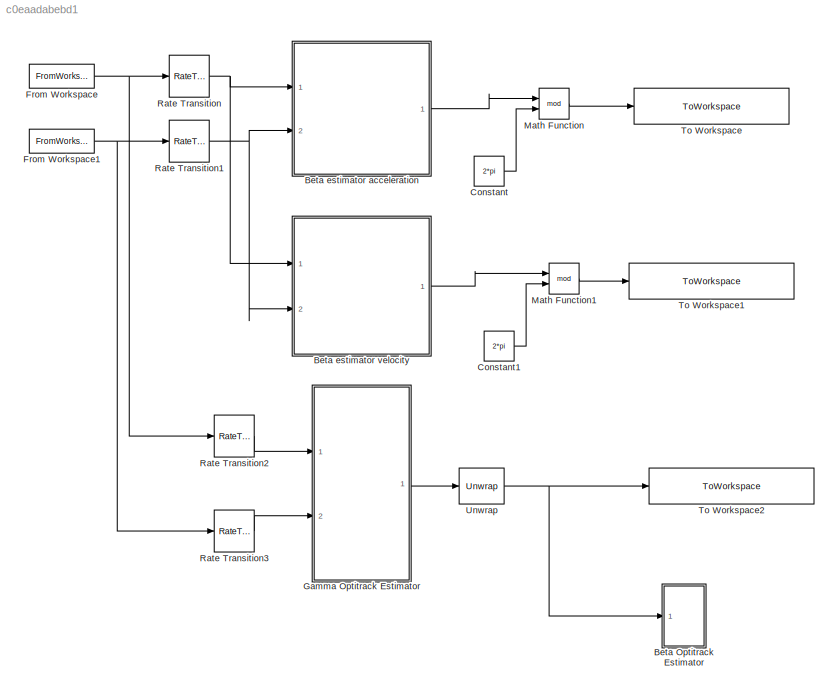
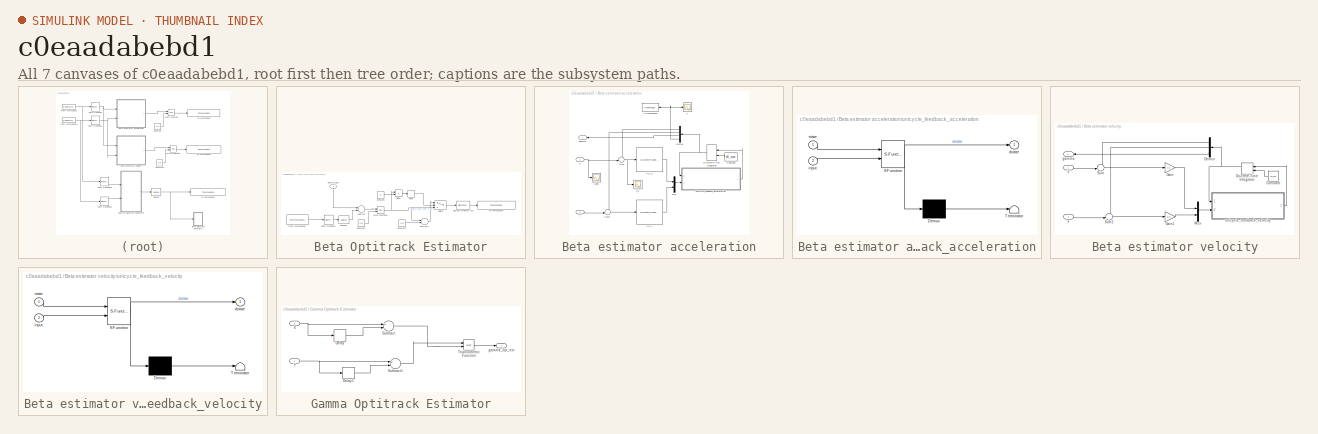
[diagram: thumbnail index - all 7 canvases of the model, root first then tree order]
MODEL slx_c0eaadabebd1
KIND model
CONFIG AbsTol = auto
CONFIG EnableMultiTasking = off
CONFIG FixedStep = 1e-3
CONFIG MaxStep = auto
CONFIG MinStep = auto
CONFIG RelTol = 1e-3
CONFIG SampleTimeConstraint = Unconstrained
CONFIG Solver = VariableStepAuto
CONFIG SolverName = VariableStepAuto
CONFIG StartTime = 0.0
CONFIG StopTime = 10.0
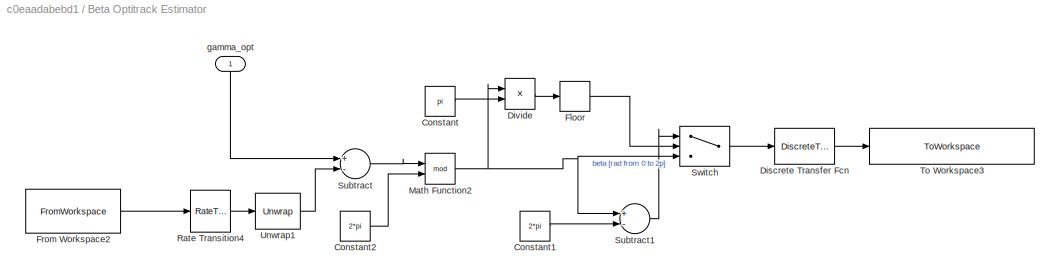
BLOCK [SubSystem] Beta Optitrack Estimator
  Ports = [1]
  RequestExecContextInheritance = off
  Variant = off
BLOCK [Constant] Beta Optitrack Estimator/Constant
  Value = pi
BLOCK [Constant] Beta Optitrack Estimator/Constant1
  Value = 2*pi
BLOCK [Constant] Beta Optitrack Estimator/Constant2
  Value = 2*pi
BLOCK [DiscreteTransferFcn] Beta Optitrack Estimator/Discrete Transfer Fcn
  Denominator = FilterDTF.Den{1}
  InputPortMap = u0
  Numerator = FilterDTF.Num{1}
  Ports = [1, 1]
BLOCK [Product] Beta Optitrack Estimator/Divide
  InputSameDT = off
  Inputs = */
  OutDataTypeStr = Inherit: Inherit via internal rule
  Ports = [2, 1]
  RndMeth = Floor
  SaturateOnIntegerOverflow = off
BLOCK [Rounding] Beta Optitrack Estimator/Floor
BLOCK [FromWorkspace] Beta Optitrack Estimator/From Workspace2
  Interpolate = off
  OutputAfterFinalValue = Holding final value
  SampleTime = 0
  VariableName = theta_opt_buchi
  ZeroCross = on
BLOCK [Math] Beta Optitrack Estimator/Math Function2
  Operator = mod
  Ports = [2, 1]
BLOCK [RateTransition] Beta Optitrack Estimator/Rate Transition4
  OutPortSampleTime = 0.01
BLOCK [Sum] Beta Optitrack Estimator/Subtract
  InputSameDT = off
  Inputs = +-
  OutDataTypeStr = Inherit: Inherit via internal rule
  Ports = [2, 1]
  SaturateOnIntegerOverflow = off
BLOCK [Sum] Beta Optitrack Estimator/Subtract1
  InputSameDT = off
  Inputs = +-
  OutDataTypeStr = Inherit: Inherit via internal rule
  Ports = [2, 1]
  SaturateOnIntegerOverflow = off
BLOCK [Switch] Beta Optitrack Estimator/Switch
  InputSameDT = off
  SaturateOnIntegerOverflow = off
  Threshold = 1
BLOCK [ToWorkspace] Beta Optitrack Estimator/To Workspace3
  FixptAsFi = on
  MaxDataPoints = inf
  Ports = [1]
  SampleTime = -1
  Save2DSignal = 3-D array (concatenate along third dimension)
  SaveFormat = Timeseries
  VariableName = beta_estimator_opt
BLOCK [Reference] Beta Optitrack Estimator/Unwrap1  REF=dspsigops/Unwrap
  Ports = [1, 1]
  SourceBlock = dspsigops/Unwrap
  SourceProductBaseCode = DS
  SourceProductName = DSP System Toolbox
  SourceType = Unwrap
  UserDataPersistent = on
BLOCK [Inport] Beta Optitrack Estimator/gamma_opt
  IconDisplay = Port number
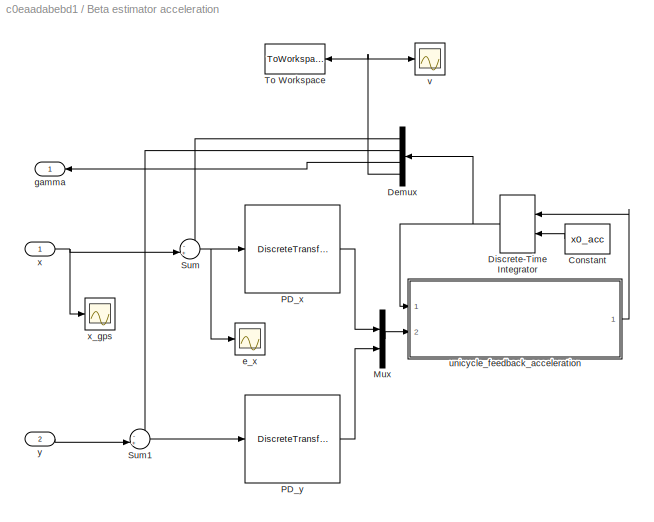
BLOCK [SubSystem] Beta estimator acceleration
  Ports = [2, 1]
  RequestExecContextInheritance = off
  SystemSampleTime = 1e-3
  TreatAsAtomicUnit = on
  Variant = off
BLOCK [Constant] Beta estimator acceleration/Constant
  Value = x0_acc
BLOCK [Demux] Beta estimator acceleration/Demux
  DisplayOption = bar
  Ports = [1, 4]
BLOCK [DiscreteIntegrator] Beta estimator acceleration/Discrete-Time Integrator
  ICPrevOutput = DiscIntNeverNeededParam
  ICPrevScaledInput = DiscIntNeverNeededParam
  InitialCondition = [0 0 0 0.1]
  InitialConditionSetting = State (most efficient)
  InitialConditionSource = external
  Ports = [2, 1]
  SampleTime = 1e-3
BLOCK [Mux] Beta estimator acceleration/Mux
  DisplayOption = bar
  Inputs = 2
  Ports = [2, 1]
BLOCK [DiscreteTransferFcn] Beta estimator acceleration/PD_x
  Denominator = Den_PDa
  InputPortMap = u0
  Numerator = Num_PDa
  Ports = [1, 1]
  SampleTime = 0.001
  a0EqualsOne = on
BLOCK [DiscreteTransferFcn] Beta estimator acceleration/PD_y
  Denominator = Den_PDa
  InputPortMap = u0
  Numerator = Num_PDa
  Ports = [1, 1]
  SampleTime = 0.001
  a0EqualsOne = on
BLOCK [Sum] Beta estimator acceleration/Sum
  IconShape = round
  InputSameDT = off
  Inputs = -+|
  OutDataTypeStr = Inherit: Inherit via internal rule
  Ports = [2, 1]
  SaturateOnIntegerOverflow = off
BLOCK [Sum] Beta estimator acceleration/Sum1
  IconShape = round
  InputSameDT = off
  Inputs = -+|
  OutDataTypeStr = Inherit: Inherit via internal rule
  Ports = [2, 1]
  SaturateOnIntegerOverflow = off
BLOCK [ToWorkspace] Beta estimator acceleration/To Workspace
  FixptAsFi = on
  MaxDataPoints = inf
  Ports = [1]
  SampleTime = -1
  Save2DSignal = 3-D array (concatenate along third dimension)
  SaveFormat = Timeseries
  VariableName = v
BLOCK [Scope] Beta estimator acceleration/e_x
  NumInputPorts = 1
  Ports = [1]
  ScopeSpecificationString = Simulink.scopes.TimeScopeBlockCfg('CurrentConfiguration', extmgr.ConfigurationSet(extmgr.Configuration('Core','General UI',true),extmgr.Configuration('Core','Source UI',true),extmgr.Configuration('Sources','WiredSimulink',true,'DataLoggingVariableName','ScopeData1'),extmgr.Configuration('Visuals','Time Domain',true,'SerializedDisplays',{struct('MinYLimReal','-0.03129','MaxYLimReal','0.10111','YLab...<+1434ch>
BLOCK [Outport] Beta estimator acceleration/gamma
  IconDisplay = Port number
BLOCK [SubSystem] Beta estimator acceleration/unicycle_feedback_acceleration
  ErrorFcn = Stateflow.Translate.translate
  PermitHierarchicalResolution = ExplicitOnly
  Ports = [2, 1]
  RequestExecContextInheritance = off
  SFBlockType = MATLAB Function
  TreatAsAtomicUnit = on
  Variant = off
BLOCK [Demux] Beta estimator acceleration/unicycle_feedback_acceleration/ Demux 
  Outputs = 1
  Ports = [1, 1]
BLOCK [S-Function] Beta estimator acceleration/unicycle_feedback_acceleration/ SFunction 
  EnableBusSupport = on
  FunctionName = sf_sfun
  PortCounts = [2 2]
  Ports = [2, 2]
  SFcnIsStateOwnerBlock = off
  SFunctionDeploymentMode = off
  Tag = Stateflow S-Function beta_estimators_simulink 2
BLOCK [Terminator] Beta estimator acceleration/unicycle_feedback_acceleration/ Terminator 
BLOCK [Outport] Beta estimator acceleration/unicycle_feedback_acceleration/dstate
  IconDisplay = Port number
BLOCK [Inport] Beta estimator acceleration/unicycle_feedback_acceleration/input
  IconDisplay = Port number
  Port = 2
BLOCK [Inport] Beta estimator acceleration/unicycle_feedback_acceleration/state
  IconDisplay = Port number
BLOCK [Scope] Beta estimator acceleration/v
  NumInputPorts = 1
  Ports = [1]
  ScopeSpecificationString = Simulink.scopes.TimeScopeBlockCfg('CurrentConfiguration', extmgr.ConfigurationSet(extmgr.Configuration('Core','General UI',true),extmgr.Configuration('Core','Source UI',true),extmgr.Configuration('Sources','WiredSimulink',true,'DataLoggingVariableName','ScopeData3'),extmgr.Configuration('Visuals','Time Domain',true,'SerializedDisplays',{struct('MinYLimReal','-4.68424','MaxYLimReal','4.48732','YLab...<+1438ch>
BLOCK [Inport] Beta estimator acceleration/x
  IconDisplay = Port number
BLOCK [Scope] Beta estimator acceleration/x_gps
  NumInputPorts = 1
  Ports = [1]
  ScopeSpecificationString = Simulink.scopes.TimeScopeBlockCfg('CurrentConfiguration', extmgr.ConfigurationSet(extmgr.Configuration('Core','General UI',true),extmgr.Configuration('Core','Source UI',true),extmgr.Configuration('Sources','WiredSimulink',true,'DataLoggingVariableName','ScopeData2'),extmgr.Configuration('Visuals','Time Domain',true,'SerializedDisplays',{struct('MinYLimReal','-0.98723','MaxYLimReal','2.02997','YLab...<+1432ch>
BLOCK [Inport] Beta estimator acceleration/y
  IconDisplay = Port number
  Port = 2
BLOCK [SubSystem] Beta estimator velocity
  Ports = [2, 1]
  RequestExecContextInheritance = off
  Variant = off
BLOCK [Constant] Beta estimator velocity/Constant
  Value = x0_vel
BLOCK [Demux] Beta estimator velocity/Demux
  DisplayOption = bar
  Outputs = 3
  Ports = [1, 3]
BLOCK [DiscreteIntegrator] Beta estimator velocity/Discrete-Time Integrator
  ICPrevOutput = DiscIntNeverNeededParam
  ICPrevScaledInput = DiscIntNeverNeededParam
  InitialConditionSetting = State (most efficient)
  InitialConditionSource = external
  Ports = [2, 1]
  SampleTime = 0.001
BLOCK [Gain] Beta estimator velocity/Gain
  Gain = Kp
  OutDataTypeStr = Inherit: Inherit via internal rule
  ParamDataTypeStr = Inherit: Inherit via internal rule
  SaturateOnIntegerOverflow = off
BLOCK [Gain] Beta estimator velocity/Gain1
  Gain = Kp
  OutDataTypeStr = Inherit: Inherit via internal rule
  ParamDataTypeStr = Inherit: Inherit via internal rule
  SaturateOnIntegerOverflow = off
BLOCK [Mux] Beta estimator velocity/Mux
  DisplayOption = bar
  Inputs = 2
  Ports = [2, 1]
BLOCK [Sum] Beta estimator velocity/Sum
  IconShape = round
  InputSameDT = off
  Inputs = -+|
  OutDataTypeStr = Inherit: Inherit via internal rule
  Ports = [2, 1]
  SaturateOnIntegerOverflow = off
BLOCK [Sum] Beta estimator velocity/Sum1
  IconShape = round
  InputSameDT = off
  Inputs = -+|
  OutDataTypeStr = Inherit: Inherit via internal rule
  Ports = [2, 1]
  SaturateOnIntegerOverflow = off
BLOCK [Outport] Beta estimator velocity/gamma
  IconDisplay = Port number
BLOCK [SubSystem] Beta estimator velocity/unicycle_feedback_velocity
  ErrorFcn = Stateflow.Translate.translate
  PermitHierarchicalResolution = ExplicitOnly
  Ports = [2, 1]
  RequestExecContextInheritance = off
  SFBlockType = MATLAB Function
  TreatAsAtomicUnit = on
  Variant = off
BLOCK [Demux] Beta estimator velocity/unicycle_feedback_velocity/ Demux 
  Outputs = 1
  Ports = [1, 1]
BLOCK [S-Function] Beta estimator velocity/unicycle_feedback_velocity/ SFunction 
  EnableBusSupport = on
  FunctionName = sf_sfun
  Parameters = p
  PortCounts = [2 2]
  Ports = [2, 2]
  SFcnIsStateOwnerBlock = off
  SFunctionDeploymentMode = off
  Tag = Stateflow S-Function beta_estimators_simulink 1
BLOCK [Terminator] Beta estimator velocity/unicycle_feedback_velocity/ Terminator 
BLOCK [Outport] Beta estimator velocity/unicycle_feedback_velocity/dstate
  IconDisplay = Port number
BLOCK [Inport] Beta estimator velocity/unicycle_feedback_velocity/input
  IconDisplay = Port number
  Port = 2
BLOCK [Inport] Beta estimator velocity/unicycle_feedback_velocity/state
  IconDisplay = Port number
BLOCK [Inport] Beta estimator velocity/x
  IconDisplay = Port number
BLOCK [Inport] Beta estimator velocity/y
  IconDisplay = Port number
  Port = 2
BLOCK [Constant] Constant
  Value = 2*pi
BLOCK [Constant] Constant1
  Value = 2*pi
BLOCK [FromWorkspace] From Workspace
  Interpolate = off
  OutputAfterFinalValue = Holding final value
  SampleTime = 0
  VariableName = X_opt
  ZeroCross = on
BLOCK [FromWorkspace] From Workspace1
  Interpolate = off
  OutputAfterFinalValue = Holding final value
  SampleTime = 0
  VariableName = Y_opt
  ZeroCross = on
BLOCK [SubSystem] Gamma Optitrack Estimator
  Ports = [2, 1]
  RequestExecContextInheritance = off
  SystemSampleTime = 0.01
  TreatAsAtomicUnit = on
  Variant = off
BLOCK [Delay] Gamma Optitrack Estimator/Delay
  DelayLength = 1
  InitialCondition = 0
  InputPortMap = u0
  Ports = [1, 1]
BLOCK [Delay] Gamma Optitrack Estimator/Delay1
  DelayLength = 1
  InitialCondition = 0
  InputPortMap = u0
  Ports = [1, 1]
BLOCK [Sum] Gamma Optitrack Estimator/Subtract
  InputSameDT = off
  Inputs = +-
  OutDataTypeStr = Inherit: Inherit via internal rule
  Ports = [2, 1]
  SaturateOnIntegerOverflow = off
BLOCK [Sum] Gamma Optitrack Estimator/Subtract1
  InputSameDT = off
  Inputs = +-
  OutDataTypeStr = Inherit: Inherit via internal rule
  Ports = [2, 1]
  SaturateOnIntegerOverflow = off
BLOCK [Trigonometry] Gamma Optitrack Estimator/Trigonometric Function
  Operator = atan2
  Ports = [2, 1]
BLOCK [Inport] Gamma Optitrack Estimator/X
  IconDisplay = Port number
BLOCK [Inport] Gamma Optitrack Estimator/Y
  IconDisplay = Port number
  Port = 2
BLOCK [Outport] Gamma Optitrack Estimator/gamma_opt_est
  IconDisplay = Port number
BLOCK [Math] Math Function
  Operator = mod
  OutputSignalType = real
  Ports = [2, 1]
BLOCK [Math] Math Function1
  Operator = mod
  OutputSignalType = real
  Ports = [2, 1]
BLOCK [RateTransition] Rate Transition
BLOCK [RateTransition] Rate Transition1
BLOCK [RateTransition] Rate Transition2
BLOCK [RateTransition] Rate Transition3
BLOCK [ToWorkspace] To Workspace
  FixptAsFi = on
  MaxDataPoints = inf
  Ports = [1]
  SampleTime = -1
  Save2DSignal = 3-D array (concatenate along third dimension)
  SaveFormat = Timeseries
  VariableName = gamma_estimator_acceleration
BLOCK [ToWorkspace] To Workspace1
  FixptAsFi = on
  MaxDataPoints = inf
  Ports = [1]
  SampleTime = -1
  Save2DSignal = 3-D array (concatenate along third dimension)
  SaveFormat = Timeseries
  VariableName = gamma_estimator_velocity
BLOCK [ToWorkspace] To Workspace2
  FixptAsFi = on
  MaxDataPoints = inf
  Ports = [1]
  SampleTime = -1
  Save2DSignal = 3-D array (concatenate along third dimension)
  SaveFormat = Timeseries
  VariableName = gamma_estimator_opt
BLOCK [Reference] Unwrap  REF=dspsigops/Unwrap
  Ports = [1, 1]
  SourceBlock = dspsigops/Unwrap
  SourceProductBaseCode = DS
  SourceProductName = DSP System Toolbox
  SourceType = Unwrap
  UserDataPersistent = on
LINE Beta Optitrack Estimator/Constant1:1 -> Beta Optitrack Estimator/Subtract1:2
LINE Beta Optitrack Estimator/Constant2:1 -> Beta Optitrack Estimator/Math Function2:2
LINE Beta Optitrack Estimator/Constant:1 -> Beta Optitrack Estimator/Divide:2
LINE Beta Optitrack Estimator/Discrete Transfer Fcn:1 -> Beta Optitrack Estimator/To Workspace3:1
LINE Beta Optitrack Estimator/Divide:1 -> Beta Optitrack Estimator/Floor:1
LINE Beta Optitrack Estimator/Floor:1 -> Beta Optitrack Estimator/Switch:2
LINE Beta Optitrack Estimator/From Workspace2:1 -> Beta Optitrack Estimator/Rate Transition4:1
NET Beta Optitrack Estimator/Math Function2:1 -> Beta Optitrack Estimator/Divide:1, Beta Optitrack Estimator/Subtract1:1, Beta Optitrack Estimator/Switch:3
LINE Beta Optitrack Estimator/Rate Transition4:1 -> Beta Optitrack Estimator/Unwrap1:1
LINE Beta Optitrack Estimator/Subtract1:1 -> Beta Optitrack Estimator/Switch:1
LINE Beta Optitrack Estimator/Subtract:1 -> Beta Optitrack Estimator/Math Function2:1
LINE Beta Optitrack Estimator/Switch:1 -> Beta Optitrack Estimator/Discrete Transfer Fcn:1
LINE Beta Optitrack Estimator/Unwrap1:1 -> Beta Optitrack Estimator/Subtract:2
LINE Beta Optitrack Estimator/gamma_opt:1 -> Beta Optitrack Estimator/Subtract:1
LINE Beta estimator acceleration/Constant:1 -> Beta estimator acceleration/Discrete-Time Integrator:2
LINE Beta estimator acceleration/Demux:1 -> Beta estimator acceleration/Sum:1
LINE Beta estimator acceleration/Demux:2 -> Beta estimator acceleration/Sum1:1
LINE Beta estimator acceleration/Demux:3 -> Beta estimator acceleration/gamma:1
NET Beta estimator acceleration/Demux:4 -> Beta estimator acceleration/To Workspace:1, Beta estimator acceleration/v:1
NET Beta estimator acceleration/Discrete-Time Integrator:1 -> Beta estimator acceleration/Demux:1, Beta estimator acceleration/unicycle_feedback_acceleration:1
LINE Beta estimator acceleration/Mux:1 -> Beta estimator acceleration/unicycle_feedback_acceleration:2
LINE Beta estimator acceleration/PD_x:1 -> Beta estimator acceleration/Mux:1
LINE Beta estimator acceleration/PD_y:1 -> Beta estimator acceleration/Mux:2
LINE Beta estimator acceleration/Sum1:1 -> Beta estimator acceleration/PD_y:1
NET Beta estimator acceleration/Sum:1 -> Beta estimator acceleration/PD_x:1, Beta estimator acceleration/e_x:1
LINE Beta estimator acceleration/unicycle_feedback_acceleration:1 -> Beta estimator acceleration/Discrete-Time Integrator:1
NET Beta estimator acceleration/x:1 -> Beta estimator acceleration/Sum:2, Beta estimator acceleration/x_gps:1
LINE Beta estimator acceleration/y:1 -> Beta estimator acceleration/Sum1:2
LINE Beta estimator acceleration:1 -> Math Function:1
LINE Beta estimator velocity/Constant:1 -> Beta estimator velocity/Discrete-Time Integrator:2
LINE Beta estimator velocity/Demux:1 -> Beta estimator velocity/Sum:1
LINE Beta estimator velocity/Demux:2 -> Beta estimator velocity/Sum1:1
LINE Beta estimator velocity/Demux:3 -> Beta estimator velocity/gamma:1
NET Beta estimator velocity/Discrete-Time Integrator:1 -> Beta estimator velocity/Demux:1, Beta estimator velocity/unicycle_feedback_velocity:1
LINE Beta estimator velocity/Gain1:1 -> Beta estimator velocity/Mux:2
LINE Beta estimator velocity/Gain:1 -> Beta estimator velocity/Mux:1
LINE Beta estimator velocity/Mux:1 -> Beta estimator velocity/unicycle_feedback_velocity:2
LINE Beta estimator velocity/Sum1:1 -> Beta estimator velocity/Gain1:1
LINE Beta estimator velocity/Sum:1 -> Beta estimator velocity/Gain:1
LINE Beta estimator velocity/unicycle_feedback_velocity:1 -> Beta estimator velocity/Discrete-Time Integrator:1
LINE Beta estimator velocity/x:1 -> Beta estimator velocity/Sum:2
LINE Beta estimator velocity/y:1 -> Beta estimator velocity/Sum1:2
LINE Beta estimator velocity:1 -> Math Function1:1
LINE Constant1:1 -> Math Function1:2
LINE Constant:1 -> Math Function:2
NET From Workspace1:1 -> Rate Transition1:1, Rate Transition3:1
NET From Workspace:1 -> Rate Transition2:1, Rate Transition:1
LINE Gamma Optitrack Estimator/Delay1:1 -> Gamma Optitrack Estimator/Subtract1:2
LINE Gamma Optitrack Estimator/Delay:1 -> Gamma Optitrack Estimator/Subtract:2
LINE Gamma Optitrack Estimator/Subtract1:1 -> Gamma Optitrack Estimator/Trigonometric Function:1
LINE Gamma Optitrack Estimator/Subtract:1 -> Gamma Optitrack Estimator/Trigonometric Function:2
LINE Gamma Optitrack Estimator/Trigonometric Function:1 -> Gamma Optitrack Estimator/gamma_opt_est:1
NET Gamma Optitrack Estimator/X:1 -> Gamma Optitrack Estimator/Delay:1, Gamma Optitrack Estimator/Subtract:1
NET Gamma Optitrack Estimator/Y:1 -> Gamma Optitrack Estimator/Delay1:1, Gamma Optitrack Estimator/Subtract1:1
LINE Gamma Optitrack Estimator:1 -> Unwrap:1
LINE Math Function1:1 -> To Workspace1:1
LINE Math Function:1 -> To Workspace:1
NET Rate Transition1:1 -> Beta estimator acceleration:2, Beta estimator velocity:2
LINE Rate Transition2:1 -> Gamma Optitrack Estimator:1
LINE Rate Transition3:1 -> Gamma Optitrack Estimator:2
NET Rate Transition:1 -> Beta estimator acceleration:1, Beta estimator velocity:1
NET Unwrap:1 -> Beta Optitrack Estimator:1, To Workspace2:1
note: NET lines group one-source signal fan-out (src -> all destinations, sorted); 1:1 wires keep LINE
CHART Beta estimator velocity/unicycle_feedback_velocity states=1 transitions=1
  STATE_LABEL 'eML_blk_kernel()'
  STATE_LABEL 'SCRIPT:\nfunction dstate = unicycle_feedback_velocity(state,input,p)\n\n% State and input variables\nx     = state(1);\ny     = state(2);\ngamma = state(3); % theta+beta\n\nvxp   = input(1);\nvyp   = input(2);\n\n\n% Model equations\ndstate = zeros(3,1);\ndstate(1) = vxp*cos(gamma)^2+vyp*sin(gamma)*cos(gamma);\ndstate(2) = vxp*sin(gamma)*cos(gamma)+vyp*sin(gamma)^2;\ndstate(3) = (vyp*cos(gamma)-vxp*sin(gamma))/p;...<+2ch>'
CHART Beta estimator acceleration/unicycle_feedback_acceleration states=1 transitions=1
  STATE_LABEL 'eML_blk_kernel()'
  STATE_LABEL 'SCRIPT:\nfunction dstate = unicycle_feedback_acceleration(state,input)\n\n% State and input variables\nx     = state(1); %[m]\ny     = state(2); %[m]\ngamma = state(3); % theta+beta [rad]\nv     = state(4); %[m/s]\n\nax    = input(1); %[m/s^2]\nay    = input(2); %[m/s^2]\n\n    % Model equations\n    dstate = zeros(4,1);\n    dstate(1) = v*cos(gamma); %dx/dt\n    dstate(2) = v*sin(gamma); %dy/dt\n    dstate(3) = ...<+101ch>'
